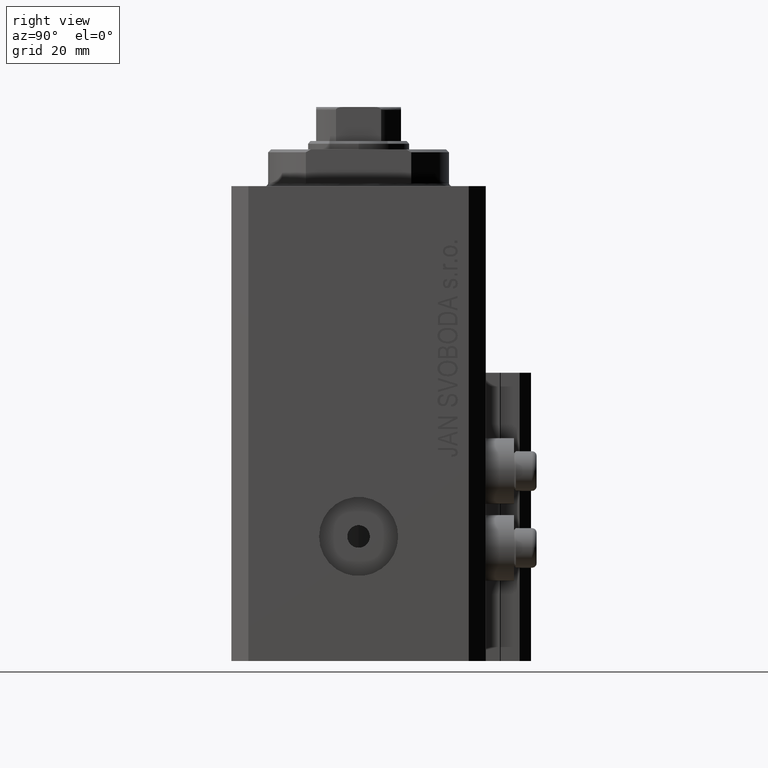
[diagram: clean part render]
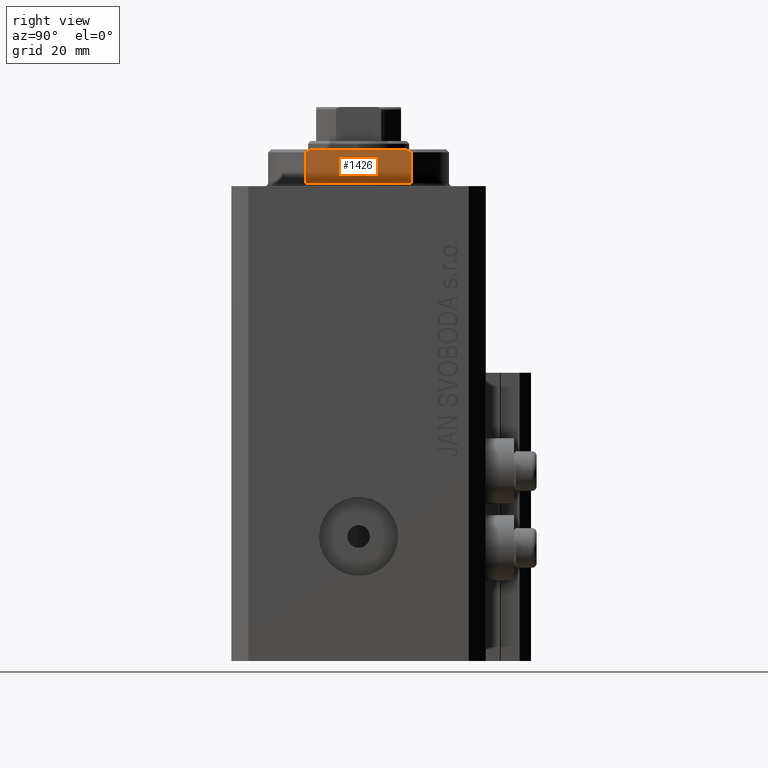
[diagram: same view with one face highlighted and labeled with its STEP entity id]
A machine part, right view. The second image highlights one B-rep face of the part: STEP entity #1426.
In plain terms, the highlighted planar face has unit normal (-1, 0, 0).
Its self-contained STEP definition (entity closure, byte-faithful):
#450 = ORIENTED_EDGE ( 'NONE', *, *, #33906, .F. ) ;
#1345 = CARTESIAN_POINT ( 'NONE',  ( -13.00000000000000000, -8.440971508067139695, -6.500000000000000000 ) ) ;
#1426 = ADVANCED_FACE ( 'NONE', ( #35664 ), #13965, .F. ) ;
#2148 = CARTESIAN_POINT ( 'NONE',  ( -13.00000000000000000, -9.327379053088815652, -6.000000000000023981 ) ) ;
#3240 = VECTOR ( 'NONE', #11468, 1000.000000000000000 ) ;
#4799 = VERTEX_POINT ( 'NONE', #34774 ) ;
#5532 = CARTESIAN_POINT ( 'NONE',  ( -13.00000000000000000, 9.327379053088916905, -6.000000000000014211 ) ) ;
#5773 = EDGE_CURVE ( 'NONE', #42884, #8313, #43391, .T. ) ;
#6116 = ORIENTED_EDGE ( 'NONE', *, *, #37400, .T. ) ;
#6169 = CARTESIAN_POINT ( 'NONE',  ( -13.00000000000000000, 8.440971508067139695, -6.500000000000000000 ) ) ;
#6260 = VECTOR ( 'NONE', #41295, 1000.000000000000000 ) ;
#7049 = CARTESIAN_POINT ( 'NONE',  ( -13.00000000000000000, -43.08131845707602992, -0.4999999999999995559 ) ) ;
#7847 = VECTOR ( 'NONE', #35951, 1000.000000000000000 ) ;
#8313 = VERTEX_POINT ( 'NONE', #40931 ) ;
#8850 = CARTESIAN_POINT ( 'NONE',  ( -13.00000000000000000, -9.327379053088813876, -6.500000000000000000 ) ) ;
#9520 = CARTESIAN_POINT ( 'NONE',  ( -13.00000000000000000, -43.08131845707602992, -0.4999999999999995559 ) ) ;
#11468 = DIRECTION ( 'NONE',  ( -0.000000000000000000, -0.000000000000000000, 1.000000000000000000 ) ) ;
#11872 = ORIENTED_EDGE ( 'NONE', *, *, #5773, .F. ) ;
#13965 = PLANE ( 'NONE',  #26473 ) ;
#15146 = B_SPLINE_CURVE_WITH_KNOTS ( 'NONE', 3,
 ( #46947, #28334, #46012, #6169 ),
 .UNSPECIFIED., .F., .F.,
 ( 4, 4 ),
 ( 0.03031084603841392722, 0.03132841702658674399 ),
 .UNSPECIFIED. ) ;
#15363 = ORIENTED_EDGE ( 'NONE', *, *, #27265, .T. ) ;
#16371 = ORIENTED_EDGE ( 'NONE', *, *, #40302, .T. ) ;
#16920 = CARTESIAN_POINT ( 'NONE',  ( -13.00000000000000000, -43.08131845707602992, -6.500000000000000000 ) ) ;
#20173 = CARTESIAN_POINT ( 'NONE',  ( -13.00000000000000000, -9.034292940839598884, -6.170857829009066542 ) ) ;
#21171 = LINE ( 'NONE', #9520, #7847 ) ;
#22179 = CARTESIAN_POINT ( 'NONE',  ( -13.00000000000000000, 9.327379053088813876, -6.500000000000000000 ) ) ;
#23981 = CARTESIAN_POINT ( 'NONE',  ( -13.00000000000000000, -8.738941625005658409, -6.337731789204286592 ) ) ;
#26072 = VERTEX_POINT ( 'NONE', #41934 ) ;
#26473 = AXIS2_PLACEMENT_3D ( 'NONE', #7049, #28507, #36140 ) ;
#27250 = CARTESIAN_POINT ( 'NONE',  ( -13.00000000000000000, 8.440971508067139695, -6.500000000000000000 ) ) ;
#27265 = EDGE_CURVE ( 'NONE', #4799, #30649, #38173, .T. ) ;
#28334 = CARTESIAN_POINT ( 'NONE',  ( -13.00000000000000000, 9.034035639617135516, -6.171007825636148247 ) ) ;
#28507 = DIRECTION ( 'NONE',  ( 1.000000000000000000, 0.000000000000000000, 0.000000000000000000 ) ) ;
#30649 = VERTEX_POINT ( 'NONE', #2148 ) ;
#33906 = EDGE_CURVE ( 'NONE', #26072, #30649, #37488, .T. ) ;
#34774 = CARTESIAN_POINT ( 'NONE',  ( -13.00000000000000000, -8.440971508067139695, -6.500000000000000000 ) ) ;
#34821 = DIRECTION ( 'NONE',  ( -0.000000000000000000, -1.000000000000000000, -0.000000000000000000 ) ) ;
#35664 = FACE_OUTER_BOUND ( 'NONE', #36604, .T. ) ;
#35951 = DIRECTION ( 'NONE',  ( -0.000000000000000000, -1.000000000000000000, -0.000000000000000000 ) ) ;
#36140 = DIRECTION ( 'NONE',  ( 0.000000000000000000, 0.000000000000000000, -1.000000000000000000 ) ) ;
#36604 = EDGE_LOOP ( 'NONE', ( #16371, #6116, #15363, #450, #37172, #11872 ) ) ;
#36865 = VECTOR ( 'NONE', #34821, 1000.000000000000000 ) ;
#37172 = ORIENTED_EDGE ( 'NONE', *, *, #39531, .F. ) ;
#37400 = EDGE_CURVE ( 'NONE', #42135, #4799, #41976, .T. ) ;
#37488 = LINE ( 'NONE', #8850, #6260 ) ;
#38173 = B_SPLINE_CURVE_WITH_KNOTS ( 'NONE', 3,
 ( #1345, #23981, #20173, #45234 ),
 .UNSPECIFIED., .F., .F.,
 ( 4, 4 ),
 ( 0.04915043732154475431, 0.05017913261572017058 ),
 .UNSPECIFIED. ) ;
#39531 = EDGE_CURVE ( 'NONE', #8313, #26072, #21171, .T. ) ;
#40302 = EDGE_CURVE ( 'NONE', #42884, #42135, #15146, .T. ) ;
#40931 = CARTESIAN_POINT ( 'NONE',  ( -13.00000000000000000, 9.327379053088815652, -0.4999999999999995559 ) ) ;
#41295 = DIRECTION ( 'NONE',  ( 0.000000000000000000, 0.000000000000000000, -1.000000000000000000 ) ) ;
#41934 = CARTESIAN_POINT ( 'NONE',  ( -13.00000000000000000, -9.327379053088815652, -0.4999999999999995559 ) ) ;
#41976 = LINE ( 'NONE', #16920, #36865 ) ;
#42135 = VERTEX_POINT ( 'NONE', #27250 ) ;
#42884 = VERTEX_POINT ( 'NONE', #5532 ) ;
#43391 = LINE ( 'NONE', #22179, #3240 ) ;
#45234 = CARTESIAN_POINT ( 'NONE',  ( -13.00000000000000000, -9.327379053088815652, -6.000000000000023981 ) ) ;
#46012 = CARTESIAN_POINT ( 'NONE',  ( -13.00000000000000000, 8.738667591047022398, -6.337881022290549282 ) ) ;
#46947 = CARTESIAN_POINT ( 'NONE',  ( -13.00000000000000000, 9.327379053088916905, -6.000000000000014211 ) ) ;